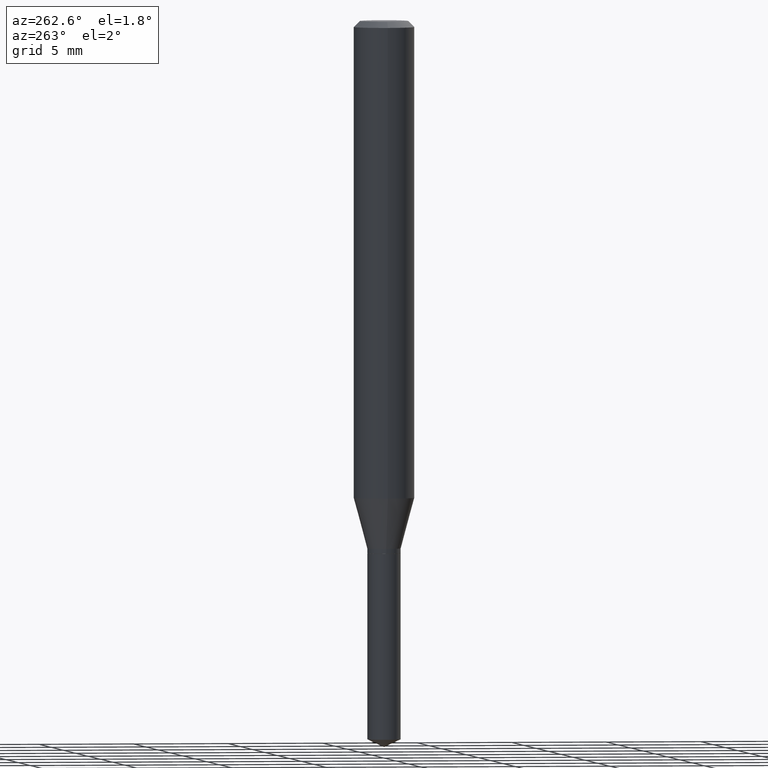
[diagram: clean part render]
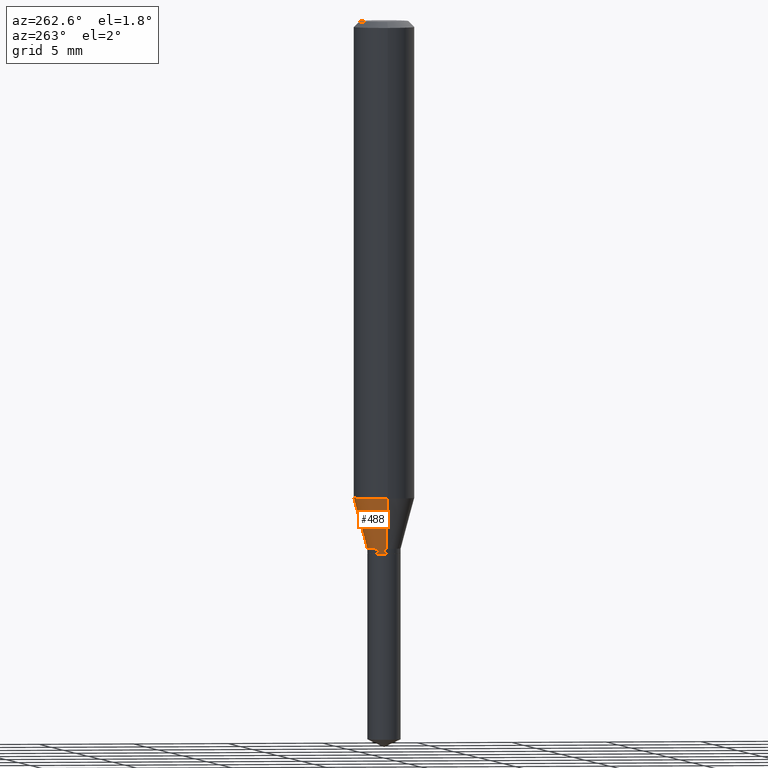
[diagram: same view with one face highlighted and labeled with its STEP entity id]
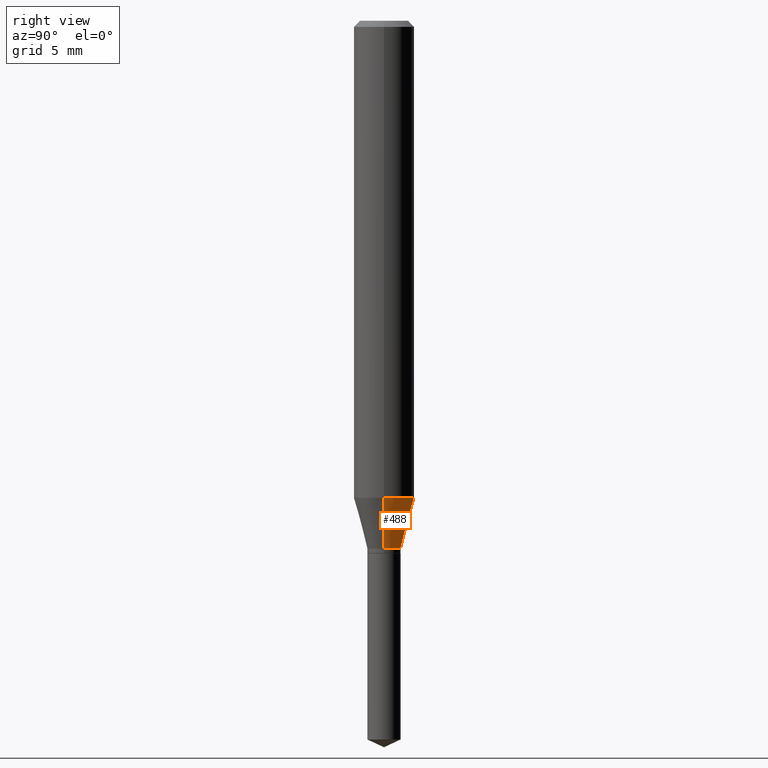
[diagram: same view with one face highlighted and labeled with its STEP entity id]
A machine part, auxiliary view. The second image highlights one B-rep face of the part: STEP entity #488.
A second angle (right view) of the same face is appended — the face is thin or edge-on in the first view.
In plain terms, the highlighted conical surface has half-angle 15 deg.
Its self-contained STEP definition (entity closure, byte-faithful):
#2 = DIRECTION ( 'NONE',  ( -2.445468806185136597E-29, 3.491481338843145583E-15, 1.000000000000000000 ) ) ;
#19 = CIRCLE ( 'NONE', #209, 0.03445000000000000145 ) ;
#21 = CARTESIAN_POINT ( 'NONE',  ( 0.03445000000000000145, -4.045230279183668208E-15, -1.089700000000000113 ) ) ;
#34 = CARTESIAN_POINT ( 'NONE',  ( 2.664827358099943591E-29, -3.804667214937376339E-15, -1.089700000000000113 ) ) ;
#64 = ORIENTED_EDGE ( 'NONE', *, *, #113, .T. ) ;
#66 = CARTESIAN_POINT ( 'NONE',  ( 0.03445000000000000145, -4.045230279183668208E-15, -1.089700000000000113 ) ) ;
#69 = EDGE_CURVE ( 'NONE', #75, #372, #100, .T. ) ;
#75 = VERTEX_POINT ( 'NONE', #66 ) ;
#81 = EDGE_CURVE ( 'NONE', #372, #363, #314, .T. ) ;
#88 = DIRECTION ( 'NONE',  ( 1.000000000000000000, -6.982962677686265922E-15, 0.000000000000000000 ) ) ;
#94 = VECTOR ( 'NONE', #197, 39.37007874015748854 ) ;
#100 = LINE ( 'NONE', #21, #181 ) ;
#105 = DIRECTION ( 'NONE',  ( 0.2588190451025212391, 1.565188264969622362E-15, 0.9659258262890679791 ) ) ;
#113 = EDGE_CURVE ( 'NONE', #75, #415, #19, .T. ) ;
#114 = CARTESIAN_POINT ( 'NONE',  ( -0.03445000000000000145, -3.576993501028352698E-15, -1.089700000000000113 ) ) ;
#122 = LINE ( 'NONE', #339, #94 ) ;
#136 = CONICAL_SURFACE ( 'NONE', #482, 0.03445000000000000145, 0.2617993877991499629 ) ;
#160 = DIRECTION ( 'NONE',  ( 1.000000000000000000, -6.982962677686265922E-15, 0.000000000000000000 ) ) ;
#168 = DIRECTION ( 'NONE',  ( 1.000000000000000000, -6.982962677686264344E-15, 0.000000000000000000 ) ) ;
#181 = VECTOR ( 'NONE', #105, 39.37007874015748854 ) ;
#186 = CARTESIAN_POINT ( 'NONE',  ( 2.664827358099943591E-29, -3.804667214937376339E-15, -1.089700000000000113 ) ) ;
#191 = CARTESIAN_POINT ( 'NONE',  ( -0.06250000000000012490, -2.995075684793045236E-15, -0.9850159748476928767 ) ) ;
#192 = CARTESIAN_POINT ( 'NONE',  ( 0.06250000000000012490, -3.875600061998501888E-15, -0.9850159748476928767 ) ) ;
#197 = DIRECTION ( 'NONE',  ( -0.2588190451025212391, 5.211531920934549464E-15, 0.9659258262890679791 ) ) ;
#209 = AXIS2_PLACEMENT_3D ( 'NONE', #34, #367, #160 ) ;
#229 = EDGE_LOOP ( 'NONE', ( #64, #246, #470, #331 ) ) ;
#246 = ORIENTED_EDGE ( 'NONE', *, *, #249, .T. ) ;
#249 = EDGE_CURVE ( 'NONE', #415, #363, #122, .T. ) ;
#256 = CARTESIAN_POINT ( 'NONE',  ( 2.408825840084076168E-29, -3.439164894643109430E-15, -0.9850159748476928767 ) ) ;
#314 = CIRCLE ( 'NONE', #389, 0.06250000000000012490 ) ;
#331 = ORIENTED_EDGE ( 'NONE', *, *, #69, .F. ) ;
#339 = CARTESIAN_POINT ( 'NONE',  ( -0.03445000000000000145, -3.559885242468021174E-15, -1.089700000000000113 ) ) ;
#361 = FACE_OUTER_BOUND ( 'NONE', #229, .T. ) ;
#363 = VERTEX_POINT ( 'NONE', #191 ) ;
#367 = DIRECTION ( 'NONE',  ( -2.445468806185136597E-29, 3.491481338843145583E-15, 1.000000000000000000 ) ) ;
#372 = VERTEX_POINT ( 'NONE', #192 ) ;
#381 = DIRECTION ( 'NONE',  ( -2.445468806185136597E-29, 3.491481338843145583E-15, 1.000000000000000000 ) ) ;
#389 = AXIS2_PLACEMENT_3D ( 'NONE', #256, #2, #168 ) ;
#415 = VERTEX_POINT ( 'NONE', #114 ) ;
#470 = ORIENTED_EDGE ( 'NONE', *, *, #81, .F. ) ;
#482 = AXIS2_PLACEMENT_3D ( 'NONE', #186, #381, #88 ) ;
#488 = ADVANCED_FACE ( 'NONE', ( #361 ), #136, .T. ) ;